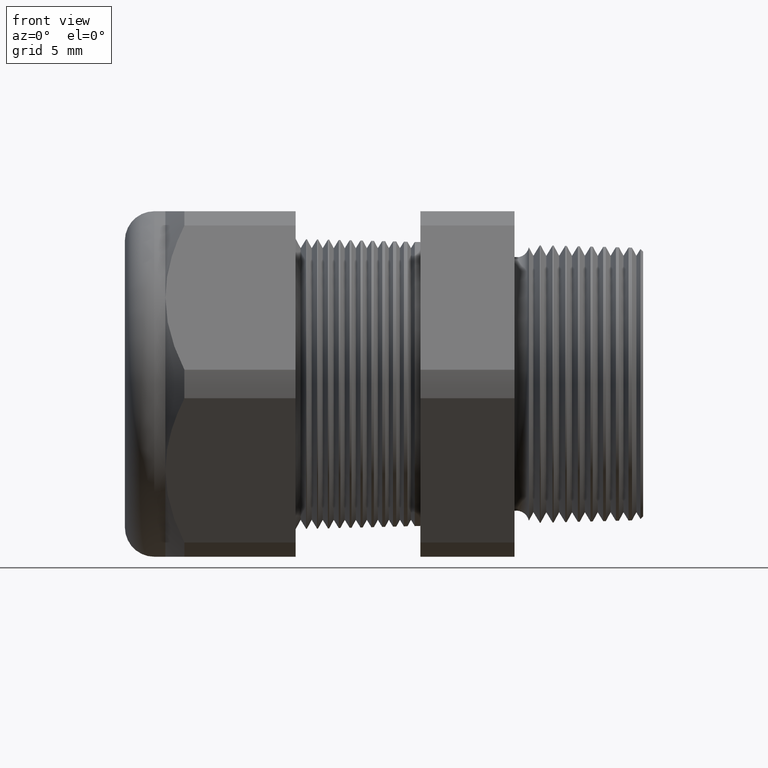
[diagram: clean part render]
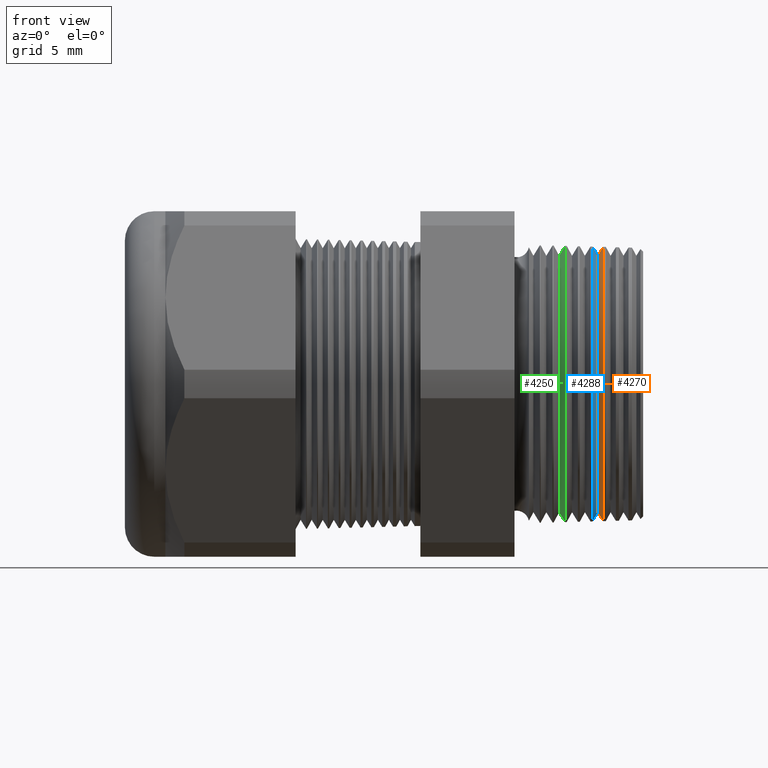
[diagram: same view with three faces highlighted in distinct colors, each labeled with its STEP entity id]
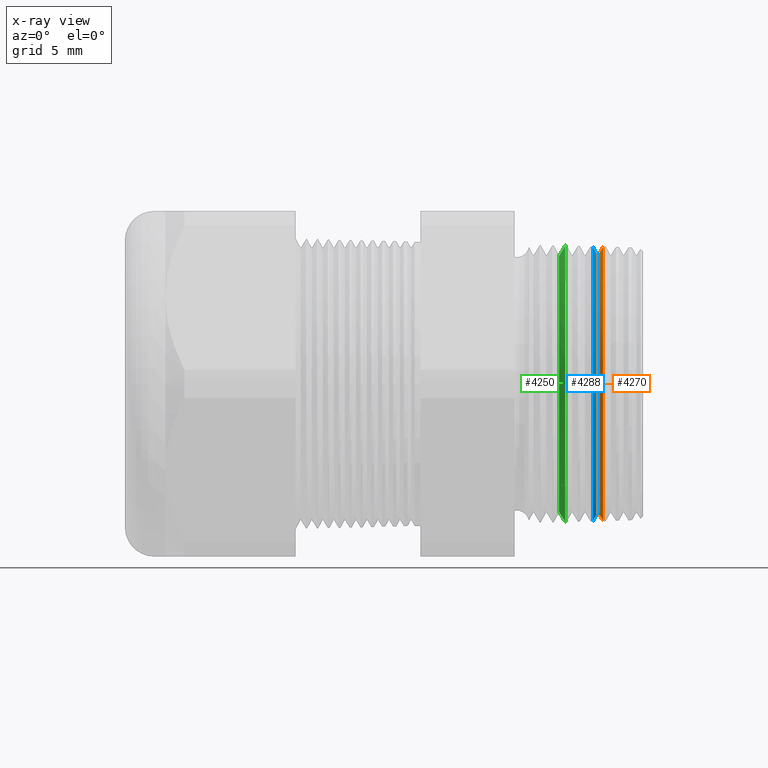
[diagram: x-ray of the same camera — body ghosted, the three highlighted faces saturated]
A machine part, front view with three faces highlighted in distinct colors.
The next image is the same camera in x-ray (body ghosted, the three faces saturated) — at least one of them is partly hidden behind the body in this view.
Their STEP definitions:

[orange] entity #4270 — the highlighted conical surface has half-angle 58.5 deg.
#377 = DIRECTION ( 'NONE',  ( 0.5224985647159352500, 0.0000000000000000000, -0.8526401643541005000 ) ) ;
#378 = VECTOR ( 'NONE', #377, 39.37007874015748900 ) ;
#379 = CARTESIAN_POINT ( 'NONE',  ( -0.08347073567907520300, 0.0000000000000000000, -0.3489649185127733400 ) ) ;
#380 = LINE ( 'NONE', #379, #378 ) ;
#410 = CARTESIAN_POINT ( 'NONE',  ( -0.06868745204509199600, 4.569023045751865900E-017, -0.3730890448521971300 ) ) ;
#811 = DIRECTION ( 'NONE',  ( 0.5224985647159352500, 1.044183048100722500E-016, 0.8526401643541005000 ) ) ;
#812 = VECTOR ( 'NONE', #811, 39.37007874015748900 ) ;
#813 = CARTESIAN_POINT ( 'NONE',  ( -0.08347073567907520300, 4.273587704713848000E-017, 0.3489649185127733400 ) ) ;
#814 = LINE ( 'NONE', #813, #812 ) ;
#815 = CARTESIAN_POINT ( 'NONE',  ( -0.06868745204509199600, 0.0000000000000000000, 0.3730890448521971300 ) ) ;
#972 = DIRECTION ( 'NONE',  ( 0.0000000000000000000, 0.0000000000000000000, -1.000000000000000000 ) ) ;
#973 = DIRECTION ( 'NONE',  ( -1.000000000000000000, 0.0000000000000000000, 0.0000000000000000000 ) ) ;
#974 = CARTESIAN_POINT ( 'NONE',  ( -0.06868745204509199600, 0.0000000000000000000, 0.0000000000000000000 ) ) ;
#975 = AXIS2_PLACEMENT_3D ( 'NONE', #974, #973, #972 ) ;
#976 = CIRCLE ( 'NONE', #975, 0.3730890448521972400 ) ;
#2332 = DIRECTION ( 'NONE',  ( 0.0000000000000000000, 0.0000000000000000000, -1.000000000000000000 ) ) ;
#2333 = DIRECTION ( 'NONE',  ( 1.000000000000000000, 0.0000000000000000000, 0.0000000000000000000 ) ) ;
#2334 = CARTESIAN_POINT ( 'NONE',  ( -0.08347073567907520300, 0.0000000000000000000, 0.0000000000000000000 ) ) ;
#2335 = AXIS2_PLACEMENT_3D ( 'NONE', #2334, #2333, #2332 ) ;
#2337 = CONICAL_SURFACE ( 'NONE', #2335, 0.3489649185127733400, 1.021017612416698700 ) ;
#2338 = FACE_OUTER_BOUND ( 'NONE', #4271, .T. ) ;
#2369 = DIRECTION ( 'NONE',  ( 0.0000000000000000000, 0.0000000000000000000, -1.000000000000000000 ) ) ;
#2370 = DIRECTION ( 'NONE',  ( 1.000000000000000000, 0.0000000000000000000, 0.0000000000000000000 ) ) ;
#2371 = AXIS2_PLACEMENT_3D ( 'NONE', #2376, #2370, #2369 ) ;
#2372 = CIRCLE ( 'NONE', #2371, 0.3489649185127733400 ) ;
#2376 = CARTESIAN_POINT ( 'NONE',  ( -0.08347073567907520300, 0.0000000000000000000, 0.0000000000000000000 ) ) ;
#3013 = CARTESIAN_POINT ( 'NONE',  ( -0.08347073567907520300, 0.0000000000000000000, 0.3489649185127733400 ) ) ;
#3019 = CARTESIAN_POINT ( 'NONE',  ( -0.08347073567907520300, 4.425840462819615600E-017, -0.3489649185127733400 ) ) ;
#3166 = EDGE_CURVE ( 'NONE', #5130, #3180, #380, .T. ) ;
#3180 = VERTEX_POINT ( 'NONE', #410 ) ;
#3398 = VERTEX_POINT ( 'NONE', #815 ) ;
#3399 = EDGE_CURVE ( 'NONE', #5135, #3398, #814, .T. ) ;
#3484 = EDGE_CURVE ( 'NONE', #3180, #3398, #976, .T. ) ;
#4270 = ADVANCED_FACE ( 'NONE', ( #2338 ), #2337, .T. ) ;
#4271 = EDGE_LOOP ( 'NONE', ( #4272, #4273, #4274, #4275 ) ) ;
#4272 = ORIENTED_EDGE ( 'NONE', *, *, #3399, .F. ) ;
#4273 = ORIENTED_EDGE ( 'NONE', *, *, #4292, .T. ) ;
#4274 = ORIENTED_EDGE ( 'NONE', *, *, #3166, .T. ) ;
#4275 = ORIENTED_EDGE ( 'NONE', *, *, #3484, .T. ) ;
#4292 = EDGE_CURVE ( 'NONE', #5135, #5130, #2372, .T. ) ;
#5130 = VERTEX_POINT ( 'NONE', #3019 ) ;
#5135 = VERTEX_POINT ( 'NONE', #3013 ) ;

[blue] entity #4288 — the highlighted conical surface has half-angle 61.5 deg.
#333 = CARTESIAN_POINT ( 'NONE',  ( -0.09697120011612868400, 0.0000000000000000000, 0.3738296808608678700 ) ) ;
#390 = DIRECTION ( 'NONE',  ( -0.4771587602596179000, 1.076240564057388100E-016, -0.8788171126619600500 ) ) ;
#391 = VECTOR ( 'NONE', #390, 39.37007874015748900 ) ;
#392 = CARTESIAN_POINT ( 'NONE',  ( -0.09999999999999996400, 4.646408372336645900E-017, -0.3794080363066033600 ) ) ;
#393 = LINE ( 'NONE', #392, #391 ) ;
#408 = CARTESIAN_POINT ( 'NONE',  ( -0.09697120011612868400, 4.579081489780665800E-017, -0.3738296808608678700 ) ) ;
#603 = DIRECTION ( 'NONE',  ( -0.4771587602596179000, 0.0000000000000000000, 0.8788171126619600500 ) ) ;
#604 = VECTOR ( 'NONE', #603, 39.37007874015748900 ) ;
#605 = CARTESIAN_POINT ( 'NONE',  ( -0.09999999999999996400, 0.0000000000000000000, 0.3794080363066033600 ) ) ;
#606 = LINE ( 'NONE', #605, #604 ) ;
#968 = CARTESIAN_POINT ( 'NONE',  ( -0.09697120011612868400, 0.0000000000000000000, 0.0000000000000000000 ) ) ;
#1025 = DIRECTION ( 'NONE',  ( 0.0000000000000000000, 0.0000000000000000000, 1.000000000000000000 ) ) ;
#1026 = DIRECTION ( 'NONE',  ( 1.000000000000000000, 0.0000000000000000000, 0.0000000000000000000 ) ) ;
#1027 = AXIS2_PLACEMENT_3D ( 'NONE', #968, #1026, #1025 ) ;
#1028 = CIRCLE ( 'NONE', #1027, 0.3738296808608678700 ) ;
#2369 = DIRECTION ( 'NONE',  ( 0.0000000000000000000, 0.0000000000000000000, -1.000000000000000000 ) ) ;
#2370 = DIRECTION ( 'NONE',  ( 1.000000000000000000, 0.0000000000000000000, 0.0000000000000000000 ) ) ;
#2371 = AXIS2_PLACEMENT_3D ( 'NONE', #2376, #2370, #2369 ) ;
#2372 = CIRCLE ( 'NONE', #2371, 0.3489649185127733400 ) ;
#2373 = DIRECTION ( 'NONE',  ( 0.0000000000000000000, 0.0000000000000000000, 1.000000000000000000 ) ) ;
#2374 = DIRECTION ( 'NONE',  ( -1.000000000000000000, 0.0000000000000000000, 0.0000000000000000000 ) ) ;
#2375 = AXIS2_PLACEMENT_3D ( 'NONE', #2383, #2374, #2373 ) ;
#2376 = CARTESIAN_POINT ( 'NONE',  ( -0.08347073567907520300, 0.0000000000000000000, 0.0000000000000000000 ) ) ;
#2377 = CONICAL_SURFACE ( 'NONE', #2375, 0.3794080363066033600, 1.073377489976501800 ) ;
#2378 = FACE_OUTER_BOUND ( 'NONE', #4289, .T. ) ;
#2383 = CARTESIAN_POINT ( 'NONE',  ( -0.09999999999999996400, 0.0000000000000000000, 0.0000000000000000000 ) ) ;
#3013 = CARTESIAN_POINT ( 'NONE',  ( -0.08347073567907520300, 0.0000000000000000000, 0.3489649185127733400 ) ) ;
#3019 = CARTESIAN_POINT ( 'NONE',  ( -0.08347073567907520300, 4.425840462819615600E-017, -0.3489649185127733400 ) ) ;
#3157 = VERTEX_POINT ( 'NONE', #333 ) ;
#3182 = VERTEX_POINT ( 'NONE', #408 ) ;
#3189 = EDGE_CURVE ( 'NONE', #5130, #3182, #393, .T. ) ;
#3271 = EDGE_CURVE ( 'NONE', #5135, #3157, #606, .T. ) ;
#3489 = EDGE_CURVE ( 'NONE', #3157, #3182, #1028, .T. ) ;
#4288 = ADVANCED_FACE ( 'NONE', ( #2378 ), #2377, .T. ) ;
#4289 = EDGE_LOOP ( 'NONE', ( #4290, #4291, #4293, #4294 ) ) ;
#4290 = ORIENTED_EDGE ( 'NONE', *, *, #3189, .F. ) ;
#4291 = ORIENTED_EDGE ( 'NONE', *, *, #4292, .F. ) ;
#4292 = EDGE_CURVE ( 'NONE', #5135, #5130, #2372, .T. ) ;
#4293 = ORIENTED_EDGE ( 'NONE', *, *, #3271, .T. ) ;
#4294 = ORIENTED_EDGE ( 'NONE', *, *, #3489, .T. ) ;
#5130 = VERTEX_POINT ( 'NONE', #3019 ) ;
#5135 = VERTEX_POINT ( 'NONE', #3013 ) ;

[green] entity #4250 — the highlighted conical surface has half-angle 58.5 deg.
#427 = DIRECTION ( 'NONE',  ( 0.5224985647159352500, 1.044183048100722500E-016, 0.8526401643541005000 ) ) ;
#428 = VECTOR ( 'NONE', #427, 39.37007874015748900 ) ;
#429 = CARTESIAN_POINT ( 'NONE',  ( -0.1884707356790752100, 4.273587704713848000E-017, 0.3489649185127733400 ) ) ;
#430 = LINE ( 'NONE', #429, #428 ) ;
#431 = DIRECTION ( 'NONE',  ( 0.5224985647159352500, 0.0000000000000000000, -0.8526401643541005000 ) ) ;
#432 = VECTOR ( 'NONE', #431, 39.37007874015748900 ) ;
#433 = CARTESIAN_POINT ( 'NONE',  ( -0.1884707356790752100, 0.0000000000000000000, -0.3489649185127733400 ) ) ;
#434 = LINE ( 'NONE', #433, #432 ) ;
#439 = CARTESIAN_POINT ( 'NONE',  ( -0.1720291532523846000, 0.0000000000000000000, 0.3757951425348369800 ) ) ;
#486 = CARTESIAN_POINT ( 'NONE',  ( -0.1884707356790752100, 0.0000000000000000000, 0.3489649185127733400 ) ) ;
#487 = CARTESIAN_POINT ( 'NONE',  ( -0.1884707356790752100, 4.442919250672431100E-017, -0.3489649185127733400 ) ) ;
#499 = CARTESIAN_POINT ( 'NONE',  ( -0.1720291532523846000, 4.602163184404114400E-017, -0.3757951425348369800 ) ) ;
#1070 = DIRECTION ( 'NONE',  ( 0.0000000000000000000, 0.0000000000000000000, -1.000000000000000000 ) ) ;
#1071 = DIRECTION ( 'NONE',  ( -1.000000000000000000, 0.0000000000000000000, 0.0000000000000000000 ) ) ;
#1072 = CARTESIAN_POINT ( 'NONE',  ( -0.1720291532523846000, 0.0000000000000000000, 0.0000000000000000000 ) ) ;
#1073 = AXIS2_PLACEMENT_3D ( 'NONE', #1072, #1071, #1070 ) ;
#1074 = CIRCLE ( 'NONE', #1073, 0.3757951425348369800 ) ;
#2298 = DIRECTION ( 'NONE',  ( 0.0000000000000000000, 0.0000000000000000000, -1.000000000000000000 ) ) ;
#2299 = DIRECTION ( 'NONE',  ( 1.000000000000000000, 0.0000000000000000000, 0.0000000000000000000 ) ) ;
#2300 = CARTESIAN_POINT ( 'NONE',  ( -0.1884707356790752100, 0.0000000000000000000, 0.0000000000000000000 ) ) ;
#2301 = AXIS2_PLACEMENT_3D ( 'NONE', #2300, #2299, #2298 ) ;
#2303 = CONICAL_SURFACE ( 'NONE', #2301, 0.3489649185127733400, 1.021017612416698700 ) ;
#2304 = FACE_OUTER_BOUND ( 'NONE', #4251, .T. ) ;
#2305 = DIRECTION ( 'NONE',  ( 0.0000000000000000000, 0.0000000000000000000, -1.000000000000000000 ) ) ;
#2306 = DIRECTION ( 'NONE',  ( 1.000000000000000000, 0.0000000000000000000, 0.0000000000000000000 ) ) ;
#2307 = AXIS2_PLACEMENT_3D ( 'NONE', #2313, #2306, #2305 ) ;
#2308 = CIRCLE ( 'NONE', #2307, 0.3489649185127733400 ) ;
#2313 = CARTESIAN_POINT ( 'NONE',  ( -0.1884707356790752100, 0.0000000000000000000, 0.0000000000000000000 ) ) ;
#3204 = VERTEX_POINT ( 'NONE', #439 ) ;
#3210 = EDGE_CURVE ( 'NONE', #3237, #3234, #434, .T. ) ;
#3211 = EDGE_CURVE ( 'NONE', #3238, #3204, #430, .T. ) ;
#3234 = VERTEX_POINT ( 'NONE', #499 ) ;
#3237 = VERTEX_POINT ( 'NONE', #487 ) ;
#3238 = VERTEX_POINT ( 'NONE', #486 ) ;
#3535 = EDGE_CURVE ( 'NONE', #3234, #3204, #1074, .T. ) ;
#4229 = ORIENTED_EDGE ( 'NONE', *, *, #4247, .T. ) ;
#4230 = ORIENTED_EDGE ( 'NONE', *, *, #3210, .T. ) ;
#4231 = ORIENTED_EDGE ( 'NONE', *, *, #3535, .T. ) ;
#4247 = EDGE_CURVE ( 'NONE', #3238, #3237, #2308, .T. ) ;
#4250 = ADVANCED_FACE ( 'NONE', ( #2304 ), #2303, .T. ) ;
#4251 = EDGE_LOOP ( 'NONE', ( #4252, #4229, #4230, #4231 ) ) ;
#4252 = ORIENTED_EDGE ( 'NONE', *, *, #3211, .F. ) ;